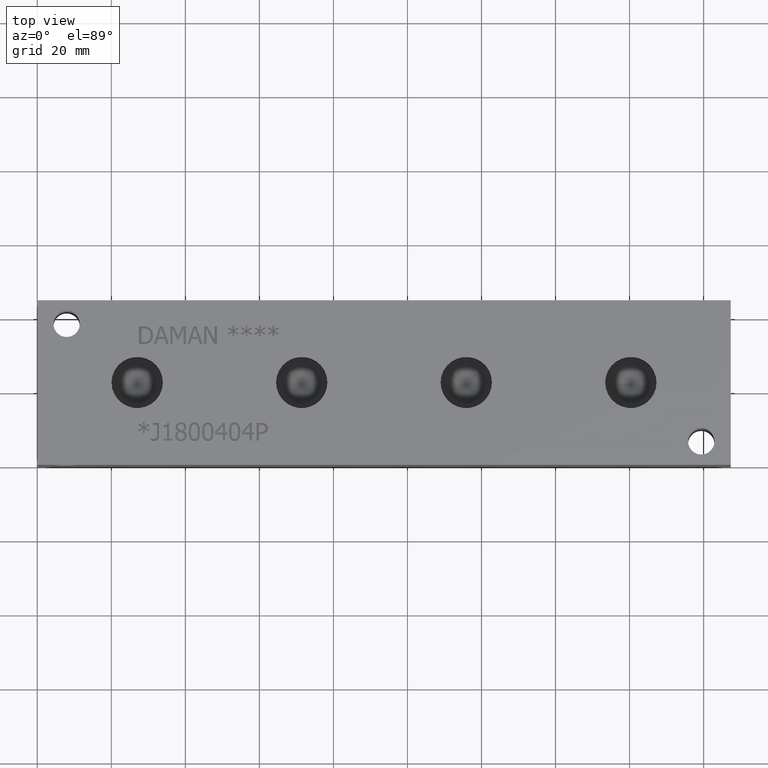
[diagram: clean part render]
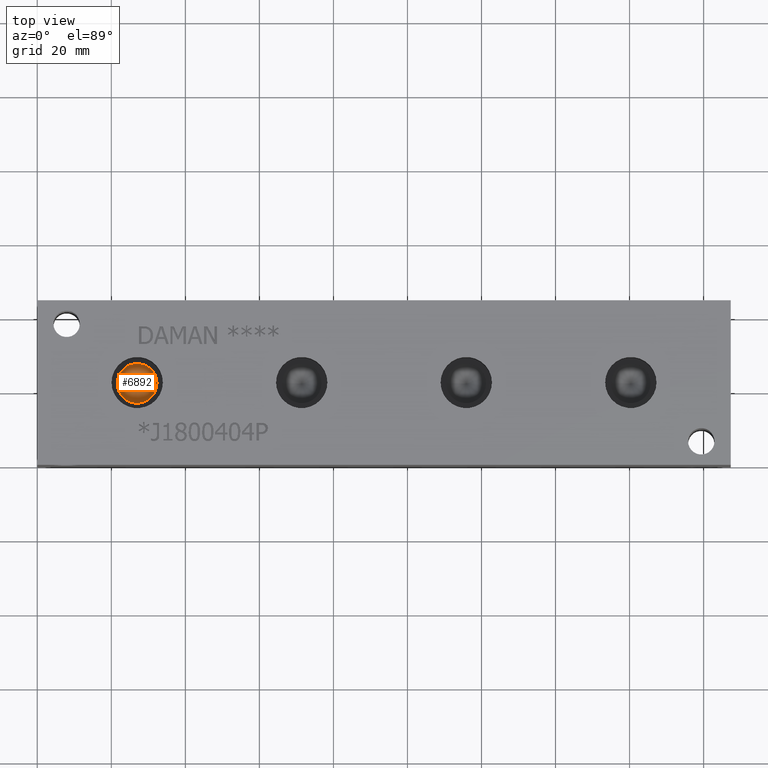
[diagram: same view with one face highlighted and labeled with its STEP entity id]
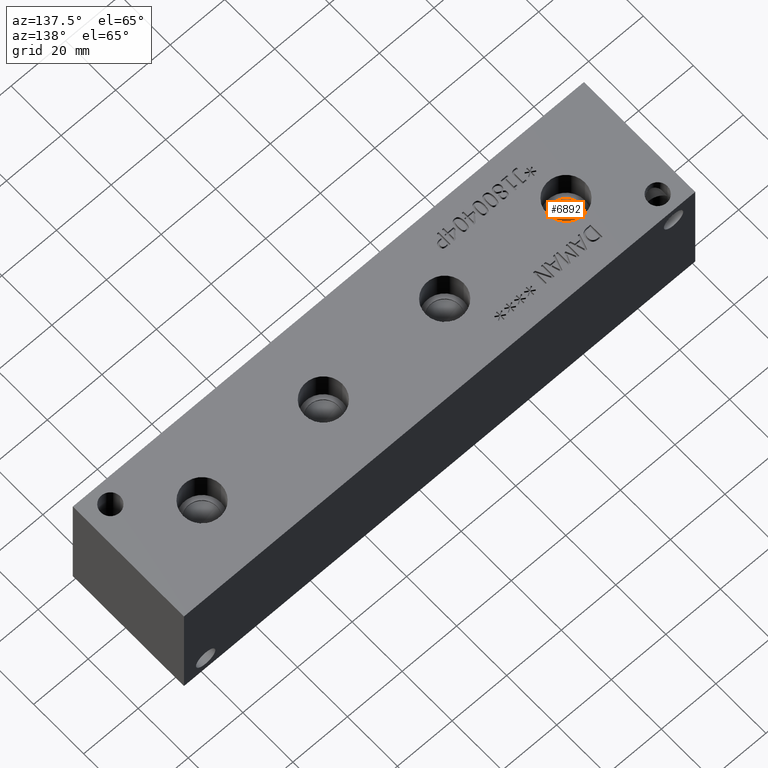
[diagram: same view with one face highlighted and labeled with its STEP entity id]
A machine part, top view. The second image highlights one B-rep face of the part: STEP entity #6892.
A second angle (auxiliary view) of the same face is appended — the face is thin or edge-on in the first view.
In plain terms, the highlighted conical surface has half-angle 60 deg.
Its self-contained STEP definition (entity closure, byte-faithful):
#51=CONICAL_SURFACE('',#7239,2.6797,1.0471975511966);
#107=CIRCLE('',#7240,5.3594);
#108=CIRCLE('',#7241,5.3594);
#747=FACE_OUTER_BOUND('',#1137,.T.);
#1137=EDGE_LOOP('',(#6098,#6099,#6100,#6101));
#1860=LINE('',#11536,#2569);
#2569=VECTOR('',#8600,2.6797);
#3352=VERTEX_POINT('',#11532);
#3353=VERTEX_POINT('',#11533);
#3354=VERTEX_POINT('',#11535);
#4281=EDGE_CURVE('',#3352,#3353,#107,.T.);
#4282=EDGE_CURVE('',#3353,#3354,#1860,.T.);
#4283=EDGE_CURVE('',#3353,#3352,#108,.T.);
#6098=ORIENTED_EDGE('',*,*,#4281,.T.);
#6099=ORIENTED_EDGE('',*,*,#4282,.T.);
#6100=ORIENTED_EDGE('',*,*,#4282,.F.);
#6101=ORIENTED_EDGE('',*,*,#4283,.T.);
#6892=ADVANCED_FACE('',(#747),#51,.F.);
#7239=AXIS2_PLACEMENT_3D('',#11531,#8596,#8597);
#7240=AXIS2_PLACEMENT_3D('',#11534,#8598,#8599);
#7241=AXIS2_PLACEMENT_3D('',#11537,#8601,#8602);
#8596=DIRECTION('center_axis',(0.,0.,1.));
#8597=DIRECTION('ref_axis',(1.,0.,0.));
#8598=DIRECTION('center_axis',(0.,0.,1.));
#8599=DIRECTION('ref_axis',(1.,0.,0.));
#8600=DIRECTION('',(0.866025403784439,1.06057523872491E-16,-0.5));
#8601=DIRECTION('center_axis',(0.,0.,1.));
#8602=DIRECTION('ref_axis',(1.,0.,0.));
#11531=CARTESIAN_POINT('Origin',(26.9748,22.225,31.1888444836526));
#11532=CARTESIAN_POINT('',(32.3342,22.225,32.73597));
#11533=CARTESIAN_POINT('',(21.6154,22.225,32.73597));
#11534=CARTESIAN_POINT('Origin',(26.9748,22.225,32.73597));
#11535=CARTESIAN_POINT('',(26.9748,22.225,29.6417189673051));
#11536=CARTESIAN_POINT('',(24.2951,22.225,31.1888444836526));
#11537=CARTESIAN_POINT('Origin',(26.9748,22.225,32.73597));